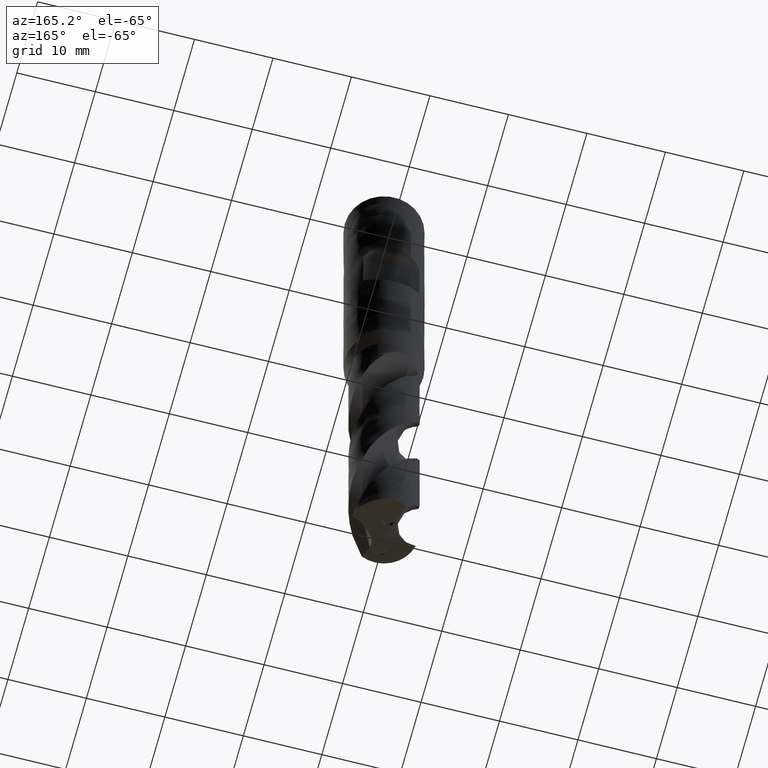
[diagram: clean part render]
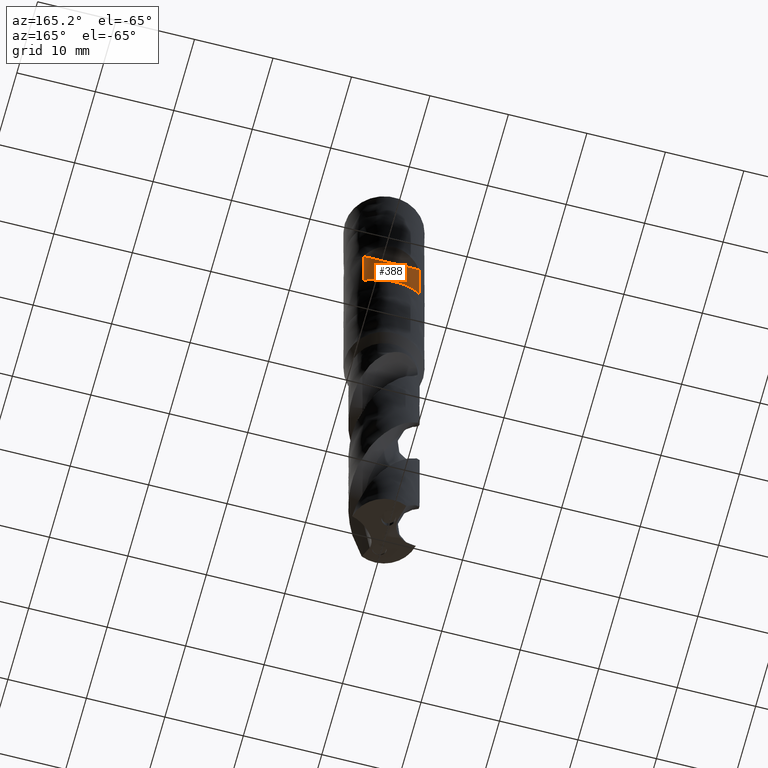
[diagram: same view with one face highlighted and labeled with its STEP entity id]
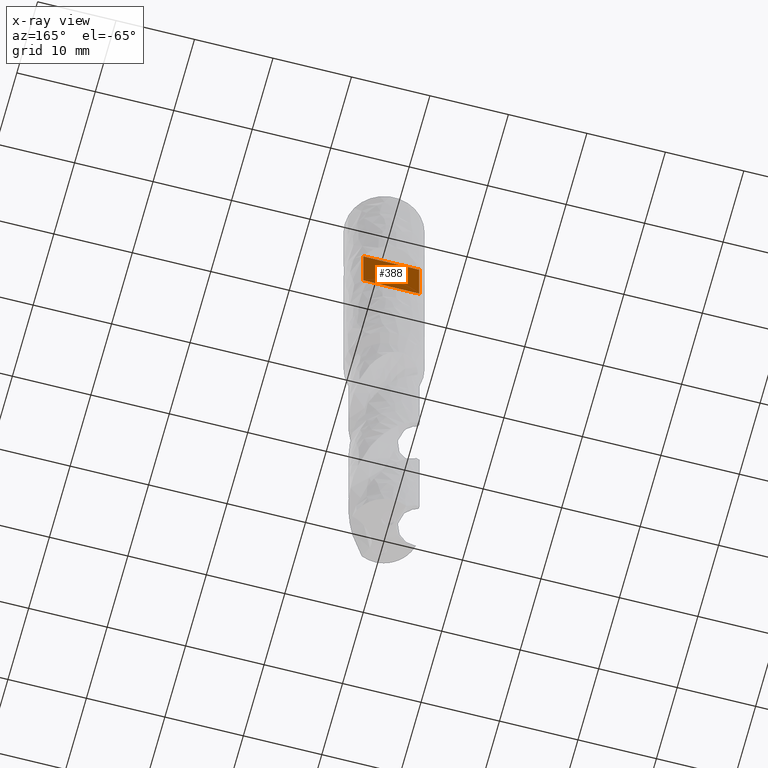
[diagram: x-ray of the same camera — body ghosted, the highlighted face saturated]
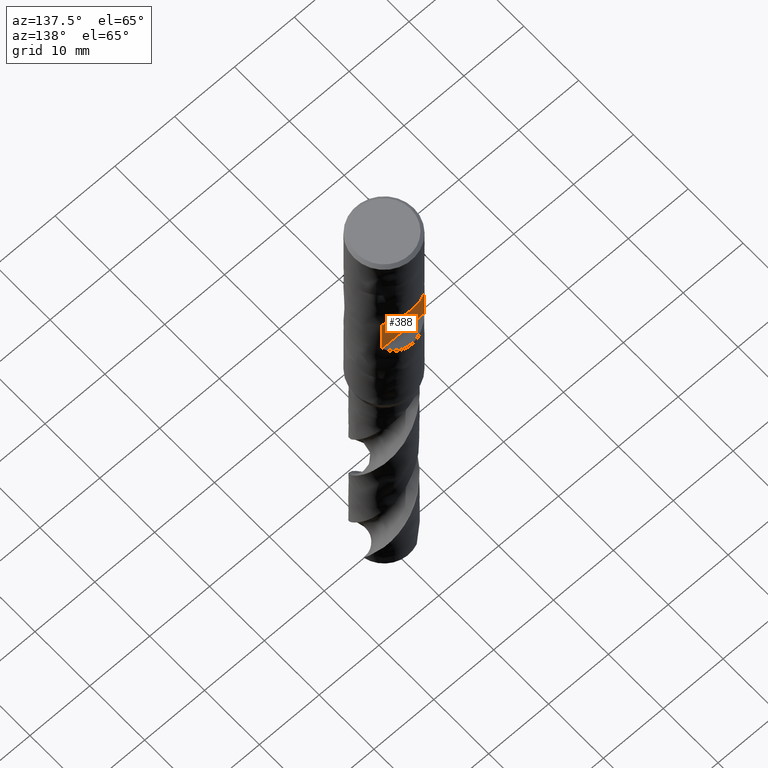
[diagram: same view with one face highlighted and labeled with its STEP entity id]
A machine part, auxiliary view. The second image highlights one B-rep face of the part: STEP entity #388.
The next image is the same camera in x-ray: the body ghosted, the highlighted face saturated — about 0% of this face is hidden behind the body in this view.
A second angle (auxiliary view) of the same face is appended — the face is thin or edge-on in the first view.
In plain terms, the highlighted planar face has unit normal (0, 1, 0).
Its self-contained STEP definition (entity closure, byte-faithful):
#186 = EDGE_CURVE('', #187, #189, #191, .T.);
#187 = VERTEX_POINT('', #188);
#188 = CARTESIAN_POINT('', (3.57071421427142, 3.5, -16.5));
#189 = VERTEX_POINT('', #190);
#190 = CARTESIAN_POINT('', (3.57071421427142, 3.5, -23.5));
#191 = LINE('', #192, #193);
#192 = CARTESIAN_POINT('', (3.57071421427142, 3.5, -16.5));
#193 = VECTOR('', #194, 7.);
#194 = DIRECTION('', (0., 4.44089209850063E-16, -7.));
#197 = VERTEX_POINT('', #198);
#198 = CARTESIAN_POINT('', (-3.57071421427142, 3.5, -16.5));
#283 = EDGE_CURVE('', #197, #284, #286, .T.);
#284 = VERTEX_POINT('', #285);
#285 = CARTESIAN_POINT('', (-3.57071421427142, 3.5, -23.5));
#286 = LINE('', #287, #288);
#287 = CARTESIAN_POINT('', (-3.57071421427142, 3.5, -16.5));
#288 = VECTOR('', #289, 7.);
#289 = DIRECTION('', (0., 4.44089209850063E-16, -7.));
#388 = ADVANCED_FACE('', (#389), #405, .T.);
#389 = FACE_OUTER_BOUND('', #390, .T.);
#390 = EDGE_LOOP('', (#391, #392, #398, #399));
#391 = ORIENTED_EDGE('', *, *, #186, .T.);
#392 = ORIENTED_EDGE('', *, *, #393, .T.);
#393 = EDGE_CURVE('', #189, #284, #394, .T.);
#394 = LINE('', #395, #396);
#395 = CARTESIAN_POINT('', (3.57071421427142, 3.5, -23.5));
#396 = VECTOR('', #397, 7.14142842854285);
#397 = DIRECTION('', (-7.14142842854285, 4.44089209850063E-16, 0.));
#398 = ORIENTED_EDGE('', *, *, #283, .F.);
#399 = ORIENTED_EDGE('', *, *, #400, .F.);
#400 = EDGE_CURVE('', #187, #197, #401, .T.);
#401 = LINE('', #402, #403);
#402 = CARTESIAN_POINT('', (3.57071421427142, 3.5, -16.5));
#403 = VECTOR('', #404, 7.14142842854285);
#404 = DIRECTION('', (-7.14142842854285, 4.44089209850063E-16, 0.));
#405 = PLANE('', #406);
#406 = AXIS2_PLACEMENT_3D('', #407, #408, #409);
#407 = CARTESIAN_POINT('', (5., 3.5, -23.5));
#408 = DIRECTION('', (8.88178419700125E-17, 1., 6.34413156928661E-17));
#409 = DIRECTION('', (-1., 8.88178419700125E-17, 0.));